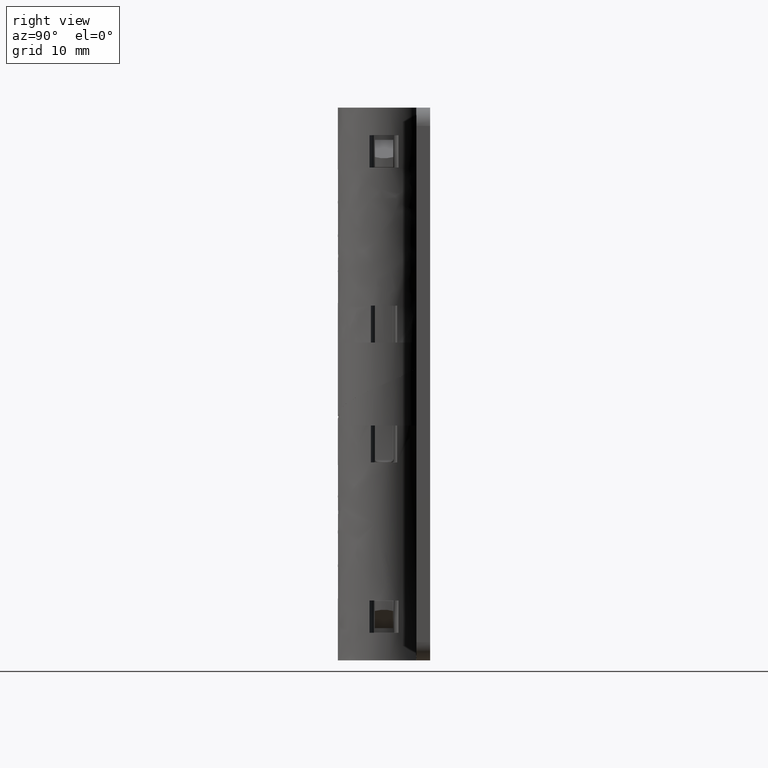
[diagram: clean part render]
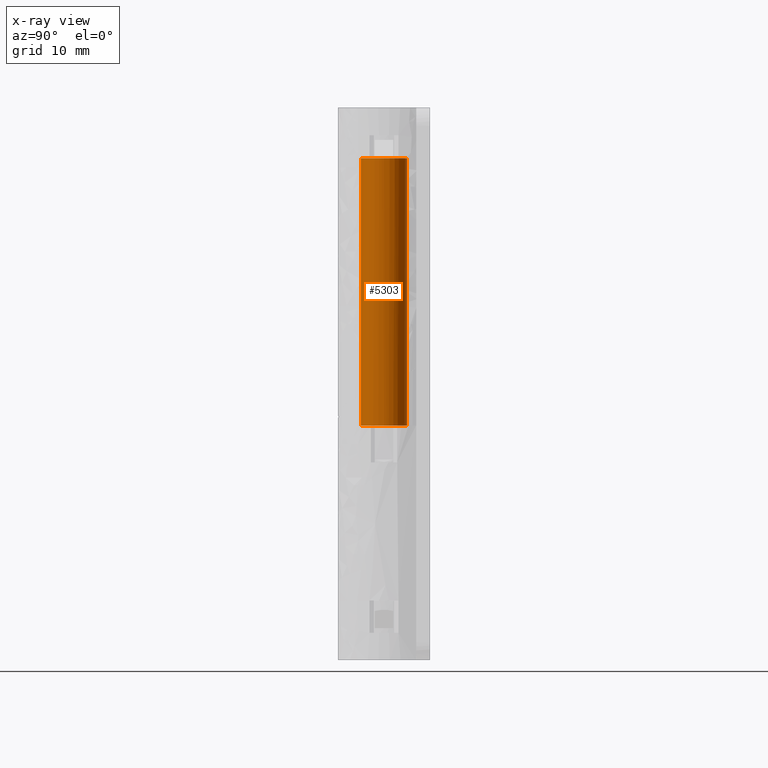
[diagram: x-ray — body ghosted, one internal face saturated and labeled with its STEP entity id]
A machine part, right view, then the same camera in x-ray: the body is ghosted and one INTERNAL B-rep face — a face not visible from any outside direction — is saturated and labeled: STEP entity #5303.
In plain terms, the highlighted face is a freeform B-spline surface patch.
Its self-contained STEP definition (entity closure, byte-faithful):
#5170=CARTESIAN_POINT('',(2.499999764767406,-1.421085E-014,54.500000011494343));
#5171=VERTEX_POINT('',#5170);
#5172=CARTESIAN_POINT('',(0.021816103764409,2.499904807658223,54.500000000100300));
#5173=VERTEX_POINT('',#5172);
#5174=CARTESIAN_POINT('',(2.499999764767406,-1.421085E-014,54.500000011494343));
#5175=CARTESIAN_POINT('',(2.499999764767406,2.478278026238526,54.500000011494343));
#5176=CARTESIAN_POINT('',(0.021816103764409,2.499904807658222,54.500000000100307));
#5184=(BOUNDED_CURVE()B_SPLINE_CURVE(2,(#5174,#5175,#5176),.UNSPECIFIED.,.F.,.U.)B_SPLINE_CURVE_WITH_KNOTS((3,3),(0.0,0.248460105647323),.UNSPECIFIED.)CURVE()GEOMETRIC_REPRESENTATION_ITEM()RATIONAL_B_SPLINE_CURVE((1.0,0.708910879640901,0.996414028059466))REPRESENTATION_ITEM(''));
#5185=EDGE_CURVE('',#5171,#5173,#5184,.T.);
#5204=CARTESIAN_POINT('',(-0.021816574229597,-2.499904807658251,54.499999999899693));
#5205=VERTEX_POINT('',#5204);
#5219=CARTESIAN_POINT('',(-0.021816574229597,-2.499904807658251,54.499999999899693));
#5220=CARTESIAN_POINT('',(-0.010908612409889,-2.500000000000014,54.499999999949850));
#5221=CARTESIAN_POINT('',(-0.000000235232594,-2.500000000000014,54.500000000000000));
#5222=CARTESIAN_POINT('',(2.499999764767405,-2.500000000000014,54.500000011494336));
#5223=CARTESIAN_POINT('',(2.499999764767406,-1.421085E-014,54.500000011494343));
#5231=(BOUNDED_CURVE()B_SPLINE_CURVE(2,(#5219,#5220,#5221,#5222,#5223),.UNSPECIFIED.,.F.,.U.)B_SPLINE_CURVE_WITH_KNOTS((3,2,3),(0.748460105647323,0.750000000000000,1.0),.UNSPECIFIED.)CURVE()GEOMETRIC_REPRESENTATION_ITEM()RATIONAL_B_SPLINE_CURVE((0.996414028059466,0.998195901545647,1.0,0.707106781186548,1.0))REPRESENTATION_ITEM(''));
#5232=EDGE_CURVE('',#5205,#5171,#5231,.T.);
#5237=CARTESIAN_POINT('',(0.021816100179985,2.499904807660413,55.224999925100320));
#5238=CARTESIAN_POINT('',(2.521720907840413,2.478088468914478,55.224999936594216));
#5239=CARTESIAN_POINT('',(2.499904569094477,-0.021816338745949,55.224999936493909));
#5240=CARTESIAN_POINT('',(2.478088230348543,-2.521721146406375,55.224999936393615));
#5241=CARTESIAN_POINT('',(-0.021816577311885,-2.499904807660442,55.224999924899713));
#5242=CARTESIAN_POINT('',(0.021816240264261,2.499904807660413,24.756878076975301));
#5243=CARTESIAN_POINT('',(2.521721047924688,2.478088468914478,24.756878088469193));
#5244=CARTESIAN_POINT('',(2.499904709178754,-0.021816338745949,24.756878088368879));
#5245=CARTESIAN_POINT('',(2.478088370432820,-2.521721146406375,24.756878088268572));
#5246=CARTESIAN_POINT('',(-0.021816437227608,-2.499904807660442,24.756878076774679));
#5254=(BOUNDED_SURFACE()B_SPLINE_SURFACE(2,1,((#5237,#5242),(#5238,#5243),(#5239,#5244),(#5240,#5245),(#5241,#5246)),.UNSPECIFIED.,.F.,.F.,.U.)B_SPLINE_SURFACE_WITH_KNOTS((3,2,3),(2,2),(0.0,4.142135623730949,8.284271247461899),(0.0,30.468121848125030),.UNSPECIFIED.)GEOMETRIC_REPRESENTATION_ITEM()RATIONAL_B_SPLINE_SURFACE(((1.0,1.0),(0.707106781186548,0.707106781186548),(1.0,1.0),(0.707106781186548,0.707106781186548),(1.0,1.0)))REPRESENTATION_ITEM('')SURFACE());
#5255=ORIENTED_EDGE('',*,*,#5185,.F.);
#5256=ORIENTED_EDGE('',*,*,#5232,.F.);
#5257=CARTESIAN_POINT('',(-0.021816440911541,-2.499904807658110,25.500002999899689));
#5258=VERTEX_POINT('',#5257);
#5259=CARTESIAN_POINT('',(-0.021816574229597,-2.499904807658251,54.499999999899693));
#5260=CARTESIAN_POINT('',(-0.021816440911541,-2.499904807658110,25.500002999899689));
#5261=QUASI_UNIFORM_CURVE('',1,(#5259,#5260),.UNSPECIFIED.,.F.,.U.);
#5262=EDGE_CURVE('',#5205,#5258,#5261,.T.);
#5263=ORIENTED_EDGE('',*,*,#5262,.T.);
#5264=CARTESIAN_POINT('',(2.499999898101637,-1.421085E-014,25.500003011494329));
#5265=VERTEX_POINT('',#5264);
#5266=CARTESIAN_POINT('',(2.499999898101637,-1.421085E-014,25.500003011494329));
#5267=CARTESIAN_POINT('',(2.499999898101637,-2.500000000000014,25.500003011494336));
#5268=CARTESIAN_POINT('',(-0.000000101898363,-2.500000000000014,25.500003000000000));
#5269=CARTESIAN_POINT('',(-0.010908479083746,-2.500000000000014,25.500002999949839));
#5270=CARTESIAN_POINT('',(-0.021816440911540,-2.499904807658110,25.500002999899692));
#5278=(BOUNDED_CURVE()B_SPLINE_CURVE(2,(#5266,#5267,#5268,#5269,#5270),.UNSPECIFIED.,.F.,.U.)B_SPLINE_CURVE_WITH_KNOTS((3,2,3),(0.500000000000000,0.750000000000000,0.751539894353817),.UNSPECIFIED.)CURVE()GEOMETRIC_REPRESENTATION_ITEM()RATIONAL_B_SPLINE_CURVE((1.0,0.707106781186548,1.0,0.998195901544312,0.996414028056828))REPRESENTATION_ITEM(''));
#5279=EDGE_CURVE('',#5265,#5258,#5278,.T.);
#5280=ORIENTED_EDGE('',*,*,#5279,.F.);
#5281=CARTESIAN_POINT('',(0.021816237114814,2.499904807658082,25.500003000100300));
#5282=VERTEX_POINT('',#5281);
#5283=CARTESIAN_POINT('',(0.021816237114814,2.499904807658082,25.500003000100303));
#5284=CARTESIAN_POINT('',(2.499999898101637,2.478278026222492,25.500003011494325));
#5285=CARTESIAN_POINT('',(2.499999898101637,-1.421085E-014,25.500003011494329));
#5293=(BOUNDED_CURVE()B_SPLINE_CURVE(2,(#5283,#5284,#5285),.UNSPECIFIED.,.F.,.U.)B_SPLINE_CURVE_WITH_KNOTS((3,3),(0.251539894353817,0.500000000000000),.UNSPECIFIED.)CURVE()GEOMETRIC_REPRESENTATION_ITEM()RATIONAL_B_SPLINE_CURVE((0.996414028056828,0.708910879642236,1.0))REPRESENTATION_ITEM(''));
#5294=EDGE_CURVE('',#5282,#5265,#5293,.T.);
#5295=ORIENTED_EDGE('',*,*,#5294,.F.);
#5296=CARTESIAN_POINT('',(0.021816103764409,2.499904807658223,54.500000000100300));
#5297=CARTESIAN_POINT('',(0.021816237114814,2.499904807658082,25.500003000100300));
#5298=QUASI_UNIFORM_CURVE('',1,(#5296,#5297),.UNSPECIFIED.,.F.,.U.);
#5299=EDGE_CURVE('',#5173,#5282,#5298,.T.);
#5300=ORIENTED_EDGE('',*,*,#5299,.F.);
#5301=EDGE_LOOP('',(#5255,#5256,#5263,#5280,#5295,#5300));
#5302=FACE_OUTER_BOUND('',#5301,.T.);
#5303=ADVANCED_FACE('',(#5302),#5254,.T.);